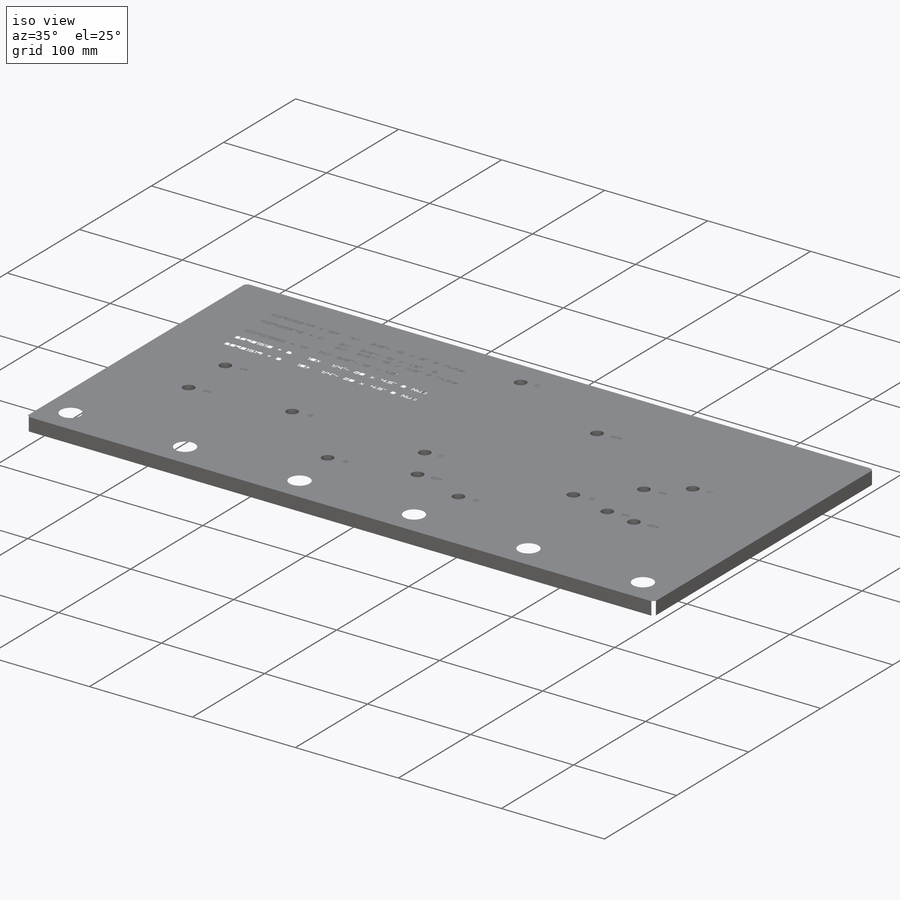
[diagram: iso view]
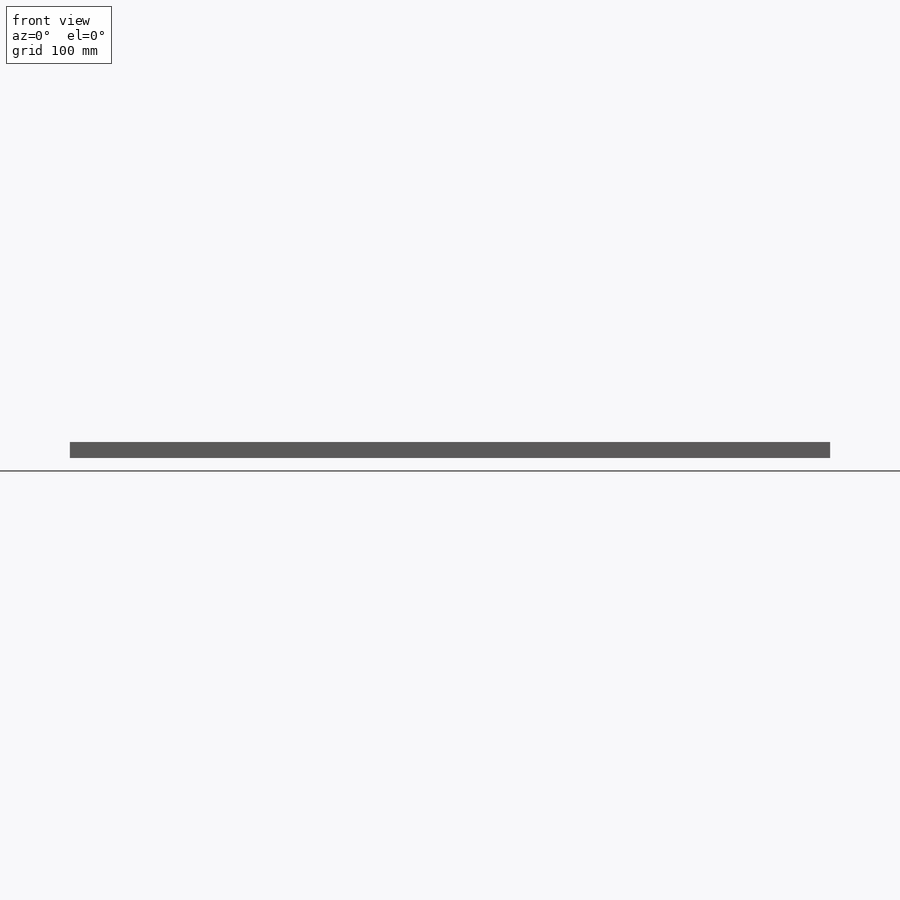
[diagram: front view]
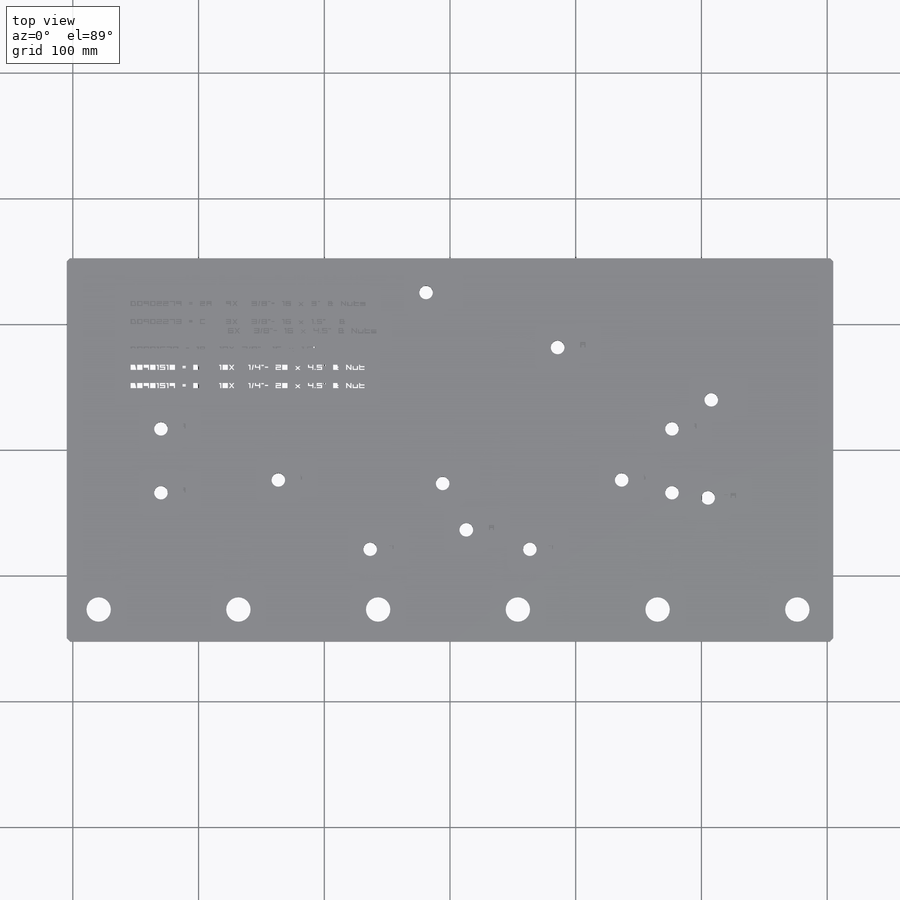
[diagram: top view]
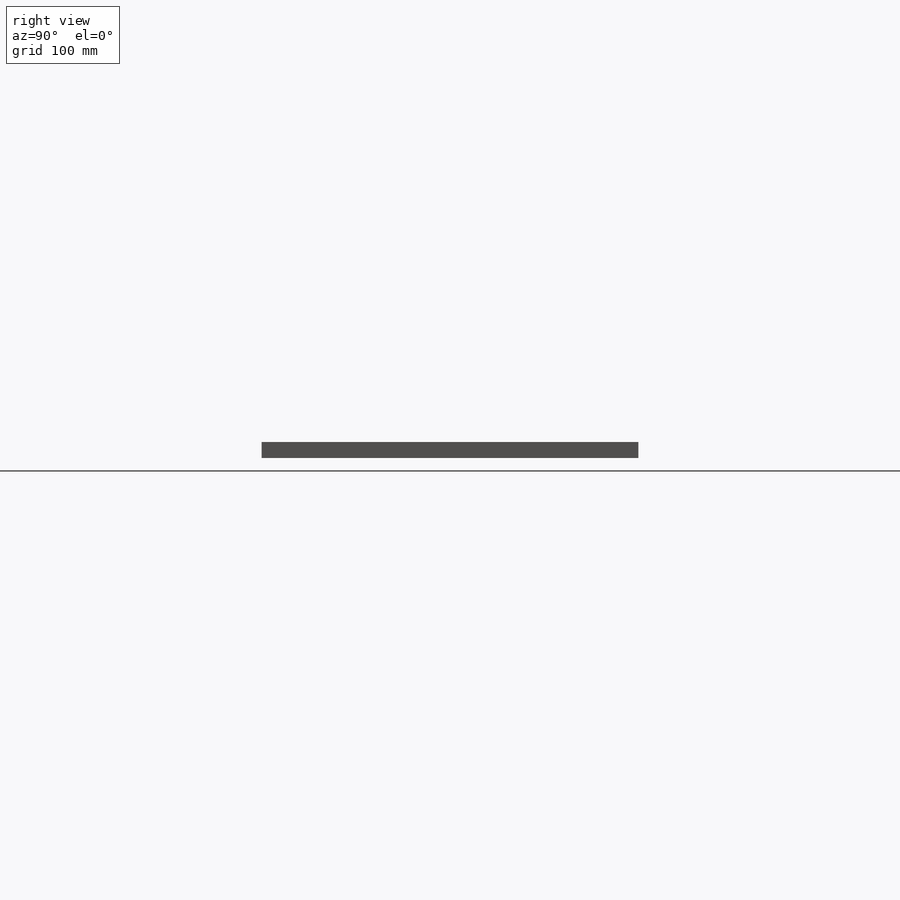
[diagram: right view]
SOLIDWORKS PART (.sldprt)
format: sldprt  version: not decoded by parser v0  size: 4,422,144 bytes
history: native  units: mm
features: sketch x23, cut_extrude x11, hole x5, extrude x2, pattern_linear x2, chamfer x2, material x1 + 1 further entry (+13 scaffold rows collapsed)
feature tree (60):
  scaffold x13  (default folders/planes/origin — collapsed)
  material  "6061-T6 Al"
  "Origin"  ID=-1
  sketch  "Sketch1"  dims[c1.D1=304.8mm c1.D2=~1278.487704mm c1.D3=304.8mm c2.D2=609.6mm]
  extrude  "Boss-Extrude1"  Depth=12.7mm
  sketch  "Sketch3"  dims[c1.D1=10.922mm c1.D7=10.922mm c1.D2=45.72mm c1.D3=159.258mm c1.D4=136.144mm c1.D5=88.9mm c1.D6=103.886mm c2.D7=257.048mm c2.D4=95.504mm c3.D7=151.892mm c3.D4=291.846mm c4.D7=215.9mm c4.D3=190.5mm c4.D6=99.568mm c4.D2=219.202mm c4.D5=70.866mm c4.D1=0.0mm]
  cut_extrude  "D0902279   2A"  [1 undecoded]
  sketch  "Sketch6"  dims[c1.D1=10.795mm c1.D3=10.795mm c1.D4=10.795mm c1.D7=10.795mm c1.D2=27.178mm c2.D3=112.522mm c2.D4=179.07mm c2.D5=97.028mm c2.D6=323.85mm c2.D7=310.642mm]
  cut_extrude  "D0902273   C"  [1 undecoded]
  sketch  "Sketch5"  dims[c1.D1=10.795mm c1.D4=10.795mm c1.D6=10.795mm c1.D7=10.795mm c1.D8=10.795mm c1.D9=10.795mm c1.D2=135.636mm c1.D3=186.436mm c2.D4=135.636mm c2.D5=186.436mm c2.D6=534.67mm c2.D7=534.67mm c2.D8=128.27mm c2.D9=128.27mm]
  cut_extrude  "D0901520   1A"  [1 undecoded]
  sketch  "Sketch7"  dims[c1.D1=10.795mm c1.D3=10.795mm c1.D4=10.795mm c1.D5=10.795mm c1.D8=10.795mm c1.D9=10.795mm c1.D2=176.276mm c2.D3=176.276mm c2.D4=231.394mm c2.D5=231.394mm c2.D6=168.275mm c2.D7=241.3mm c2.D8=368.3mm c2.D9=441.325mm c2.D1=0.0mm]
  cut_extrude  "d0901518-1519   B"  [1 undecoded]
  sketch  "Sketch18"  dims[c1.D1=10.795mm c1.D3=10.795mm c2.D1=12.7mm c2.D2=12.7mm c2.D3=12.7mm]
  cut_extrude  "Cut-Extrude C"  Depth=0.254mm
  sketch  "Sketch19"  dims[c1.D1=10.795mm c1.D2=10.795mm c2.D1=12.7mm c2.D2=12.7mm]
  cut_extrude  "Cut-Extrude 1A"  Depth=0.254mm
  sketch  "Sketch20"  dims[c1.D1=10.922mm c1.D2=10.922mm c1.D3=10.922mm c2.D1=12.7mm c2.D2=12.7mm c2.D3=12.7mm]
  cut_extrude  "Cut-Extrude 2A"  Depth=0.254mm
  sketch  "Sketch21"
  cut_extrude  "Cut-Extrude B"  Depth=0.254mm
  sketch  "Sketch22"  dims[D1=38.1mm D2=50.8mm]
  cut_extrude  "Cut-Extrude TEXT"  Depth=0.254mm
  hole  "CSK for 3/8 Flat Head Machine Screw1"  Diameter=10.0838mm Depth=12.7mm
  sketch  "Sketch24"  dims[D1=25.4mm D2=25.4mm]
  sketch  "Sketch23"  dims[hole-wizard template sketch: 39 standard entries collapsed; hole parameters kept: c13.Hole Dia.=10.0838mm c13.Hole Depth=12.7mm c13.Near C'Sink Dia.=19.3548mm c13.D4=~33.297463mm c13.Near C'Sink Angle=82.0deg c14.D5=~14.816244mm c14.Drill Angle=118.0deg]
  pattern_linear  "LPattern1"  Count1=6 Count2=1 Spacing1=111.125mm Spacing2=2.54mm
  chamfer  "Chamfer1"  Distance=2.54mm Angle=45deg
  sketch  "Sketch2"  dims[D1=50.8mm D2=101.6mm D3=304.8mm D4=304.8mm]
  extrude  "Boss-Extrude2"  Depth=50.8mm
  hole  "1/2-13 Tapped Hole 1.58 C"  Diameter=10.71626mm Depth=304.8mm
  sketch  "Sketch15"  dims[c1.D1=40.132mm c1.D2=25.4mm c2.D1=23.368mm]
  sketch  "Sketch14"  dims[hole-wizard template sketch: 42 standard entries collapsed; hole parameters kept: c12.Thru Tap Drill Depth=304.8mm c12.Thread Major Dia.=12.7mm c12.Thread Depth=33.782mm]
  hole  "1/2-13 Tapped Hole 1.55 B"  Diameter=10.71626mm Depth=304.8mm
  sketch  "Sketch11"  dims[D1=24.13mm]
  sketch  "Sketch10"  dims[hole-wizard template sketch: 42 standard entries collapsed; hole parameters kept: c12.Thru Tap Drill Depth=304.8mm c12.Thread Major Dia.=12.7mm c12.Thread Depth=33.782mm]
  hole  "1/2-13 Tapped Hole 1.25 A"  Diameter=10.71626mm Depth=304.8mm
  sketch  "Sketch13"  dims[c1.D1=31.75mm c1.D2=25.4mm c2.D1=31.75mm]
  sketch  "Sketch12"  dims[hole-wizard template sketch: 42 standard entries collapsed; hole parameters kept: c12.Thru Tap Drill Depth=304.8mm c12.Thread Major Dia.=12.7mm c12.Thread Depth=33.782mm]
  sketch  "Sketch16"
  cut_extrude  "Cut-Extrude A"  Depth=0.254mm
  sketch  "Sketch17"
  cut_extrude  "Cut-Extrude B C"  Depth=0.254mm
  hole  "3/8-16 Tapped Hole1"  Diameter=7.9375mm Depth=50.8mm
  sketch  "Sketch26"  dims[D1=25.4mm D2=25.4mm]
  sketch  "Sketch25"  dims[hole-wizard template sketch: 28 standard entries collapsed; hole parameters kept: c8.Tap Drill Dia.=7.9375mm c8.Tap Drill Depth=50.8mm c8.Thread Major Dia.=9.525mm c8.Thread Depth=25.4mm c8.D5=~14.816244mm c8.Drill Angle=118.0deg]
  pattern_linear  "LPattern2"  Count1=6 Count2=1 Spacing1=111.125mm Spacing2=2.54mm
  chamfer  "Chamfer2"  Distance=2.54mm Angle=45deg
decode coverage: 38 of 45 modeling features carry decoded parameters; 1 rows unclassified (native names shown)
note: ~ marks probable driven/reference dimensions
note: 4 parameter values undecoded
summary: no parameter record found for 4 features; Diameter pulled from absorbed wizard sketch
note: suppression state not decoded; provenance and decode notes live in map.json
